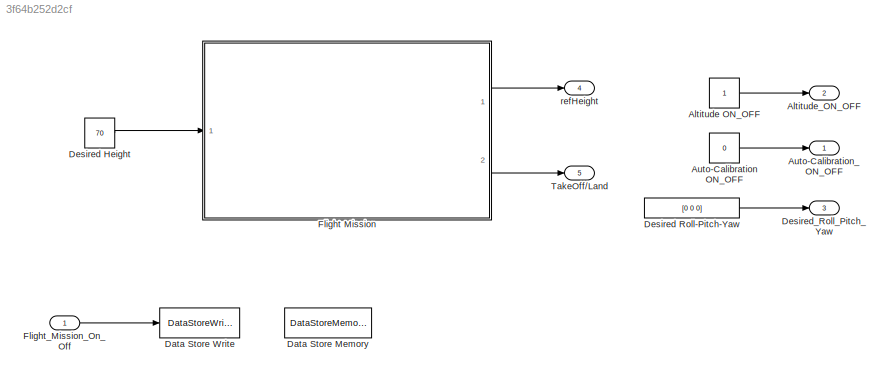
MODEL slx_3f64b252d2cf
KIND model
BLOCK [Constant] Altitude ON_OFF
BLOCK [Outport] Altitude_ON_OFF
  IconDisplay = Port number
  Port = 2
  PortDimensions = 1
BLOCK [Constant] Auto-Calibration ON_OFF
  Value = 0
BLOCK [Outport] Auto-Calibration_ON_OFF
  IconDisplay = Port number
  PortDimensions = 1
BLOCK [DataStoreMemory] Data Store Memory
  DataStoreName = Mission_On_Off
  OutDataTypeStr = boolean
  ReadBeforeWriteMsg = warning
  WriteAfterReadMsg = warning
  WriteAfterWriteMsg = warning
BLOCK [DataStoreWrite] Data Store Write
  DataStoreName = Mission_On_Off
  Ports = [1]
BLOCK [Constant] Desired Height
  Value = 70
BLOCK [Constant] Desired Roll-Pitch-Yaw
  Value = [0 0 0]
BLOCK [Outport] Desired_Roll_Pitch_Yaw
  IconDisplay = Port number
  Port = 3
  PortDimensions = 3
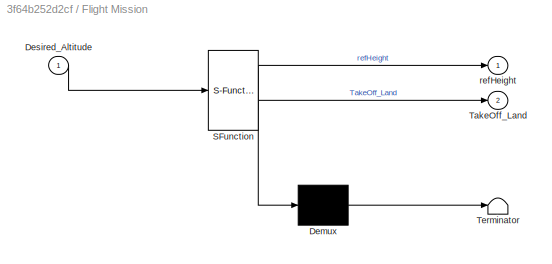
BLOCK [SubSystem] Flight Mission
  ErrorFcn = Stateflow.Translate.translate
  PermitHierarchicalResolution = ExplicitOnly
  Ports = [1, 2]
  RequestExecContextInheritance = off
  SFBlockType = Chart
  TreatAsAtomicUnit = on
BLOCK [Demux] Flight Mission/ Demux 
  Outputs = 1
  Ports = [1, 1]
BLOCK [S-Function] Flight Mission/ SFunction 
  EnableBusSupport = on
  FunctionName = sf_sfun
  PortCounts = [1 3]
  Ports = [1, 3]
  Tag = Stateflow S-Function AR_Drone_Mission_Height 10
BLOCK [Terminator] Flight Mission/ Terminator 
BLOCK [Inport] Flight Mission/Desired_Altitude
  IconDisplay = Port number
BLOCK [Outport] Flight Mission/TakeOff_Land
  IconDisplay = Port number
  Port = 2
BLOCK [Outport] Flight Mission/refHeight
  IconDisplay = Port number
BLOCK [Inport] Flight_Mission_On_Off
  IconDisplay = Port number
BLOCK [Outport] TakeOff//Land
  IconDisplay = Port number
  Port = 5
  PortDimensions = 1
BLOCK [Outport] refHeight
  IconDisplay = Port number
  Port = 4
  PortDimensions = 1
LINE Altitude ON_OFF:1 -> Altitude_ON_OFF:1
LINE Auto-Calibration ON_OFF:1 -> Auto-Calibration_ON_OFF:1
LINE Desired Height:1 -> Flight Mission:1
LINE Desired Roll-Pitch-Yaw:1 -> Desired_Roll_Pitch_Yaw:1
LINE Flight Mission:1 -> refHeight:1
LINE Flight Mission:2 -> TakeOff//Land:1
LINE Flight_Mission_On_Off:1 -> Data Store Write:1
